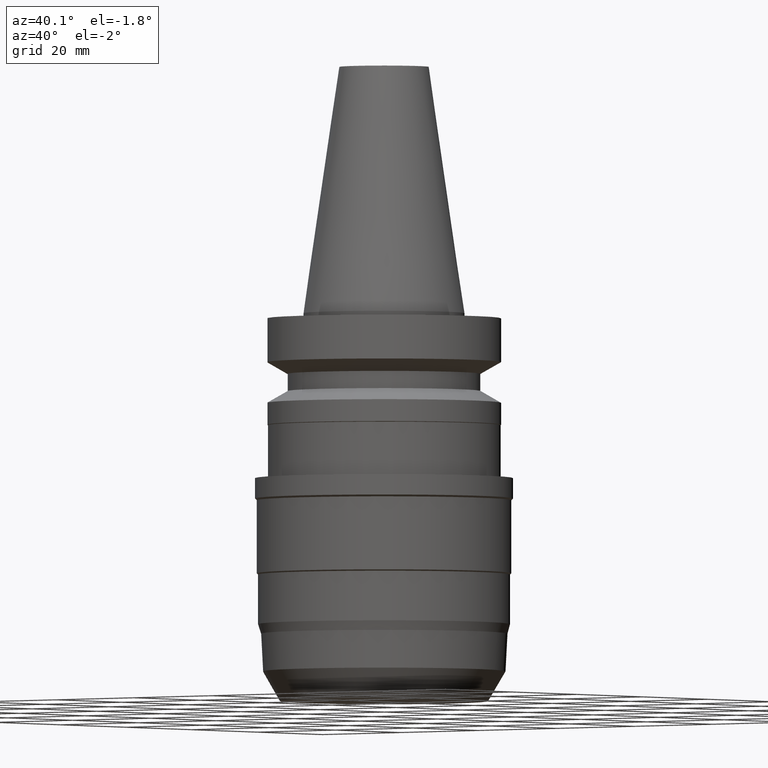
[diagram: clean part render]
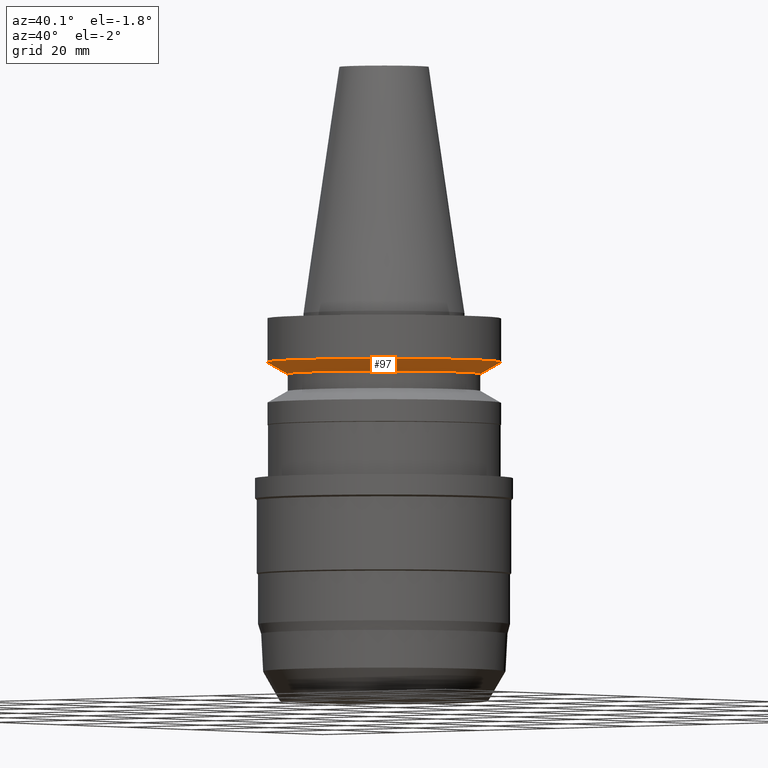
[diagram: same view with one face highlighted and labeled with its STEP entity id]
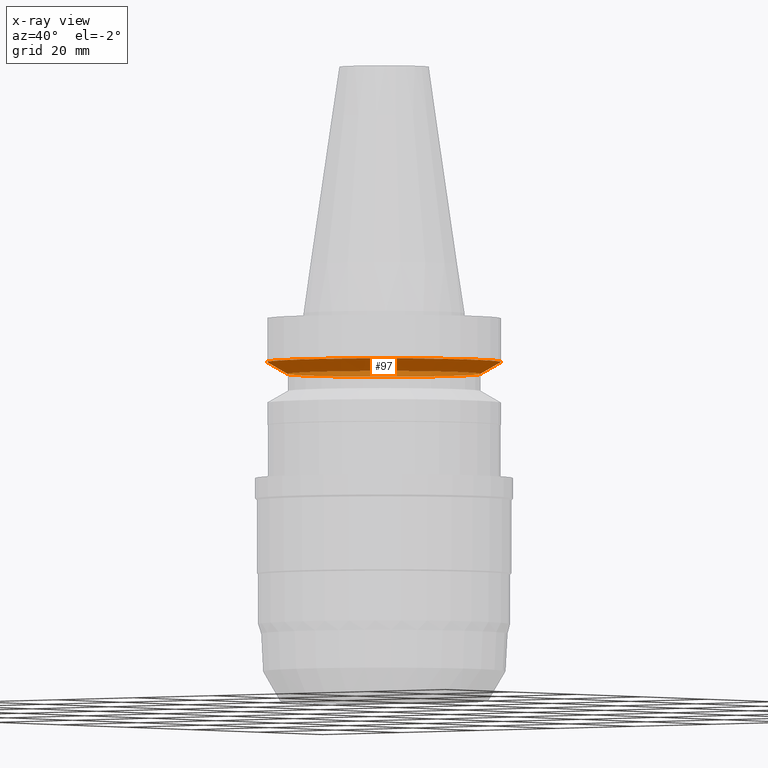
[diagram: x-ray of the same camera — body ghosted, the highlighted face saturated]
A machine part, auxiliary view. The second image highlights one B-rep face of the part: STEP entity #97.
The next image is the same camera in x-ray: the body ghosted, the highlighted face saturated — about 25% of this face is hidden behind the body in this view.
In plain terms, the highlighted conical surface has half-angle 60 deg.
Its self-contained STEP definition (entity closure, byte-faithful):
#68=EDGE_CURVE('Unnamed[1]',#191,#191,#192,.T.);
#97=ADVANCED_FACE('Unnamed[1]',(#237,#238),#239,.T.);
#105=EDGE_CURVE('Unnamed[1]',#251,#251,#252,.T.);
#191=VERTEX_POINT('',#365);
#192=CIRCLE('',#366,23.0);
#237=FACE_BOUND('',#422,.T.);
#238=FACE_BOUND('',#423,.T.);
#239=CONICAL_SURFACE('',#424,21.0,1.04719755058881);
#251=VERTEX_POINT('',#439);
#252=CIRCLE('',#440,19.0);
#365=CARTESIAN_POINT('',(5.87830463590729E-016,23.0,-9.59999999999999));
#366=AXIS2_PLACEMENT_3D('',#570,#571,#572);
#422=EDGE_LOOP('',(#622));
#423=EDGE_LOOP('',(#623));
#424=AXIS2_PLACEMENT_3D('',#624,#625,#626);
#439=CARTESIAN_POINT('',(7.29240495619202E-016,19.0,-11.90940108));
#440=AXIS2_PLACEMENT_3D('',#639,#640,#641);
#570=CARTESIAN_POINT('',(5.87830463590729E-016,1.17566092718146E-015,-9.59999999999999));
#571=DIRECTION('',(6.12323399573677E-017,1.22464679914735E-016,-1.0));
#572=DIRECTION('',(-1.23259516440783E-032,1.0,1.22464679914735E-016));
#622=ORIENTED_EDGE('',*,*,#105,.F.);
#623=ORIENTED_EDGE('',*,*,#68,.T.);
#624=CARTESIAN_POINT('',(6.58535479604966E-016,1.31707095920993E-015,-10.75470054));
#625=DIRECTION('',(-6.12323399573677E-017,-1.22464679914735E-016,1.0));
#626=DIRECTION('',(-1.23259516440783E-032,1.0,1.22464679914735E-016));
#639=CARTESIAN_POINT('',(7.29240495619202E-016,1.4584809912384E-015,-11.90940108));
#640=DIRECTION('',(6.12323399573677E-017,1.22464679914735E-016,-1.0));
#641=DIRECTION('',(-1.23259516440783E-032,1.0,1.22464679914735E-016));